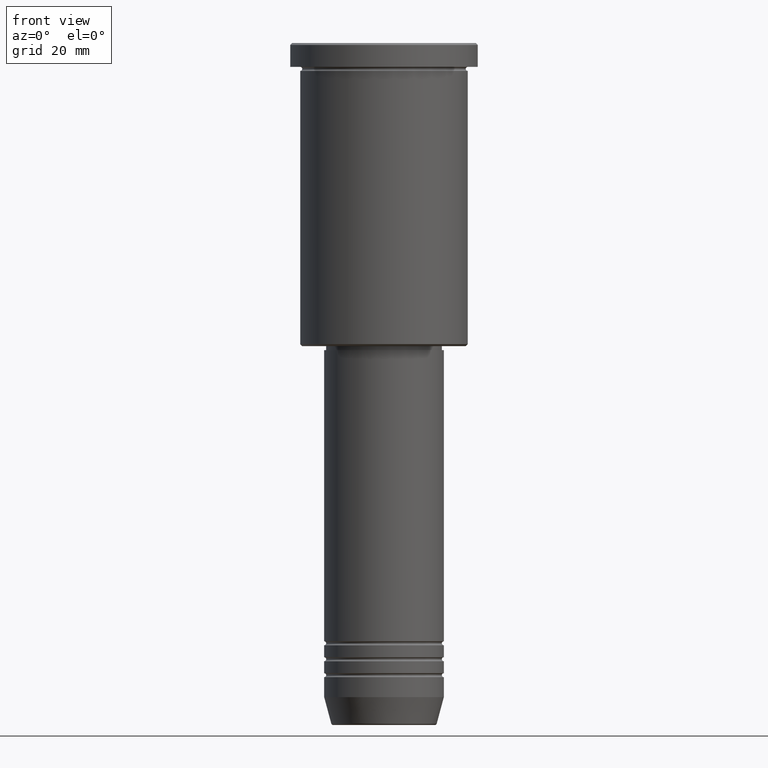
[diagram: clean part render]
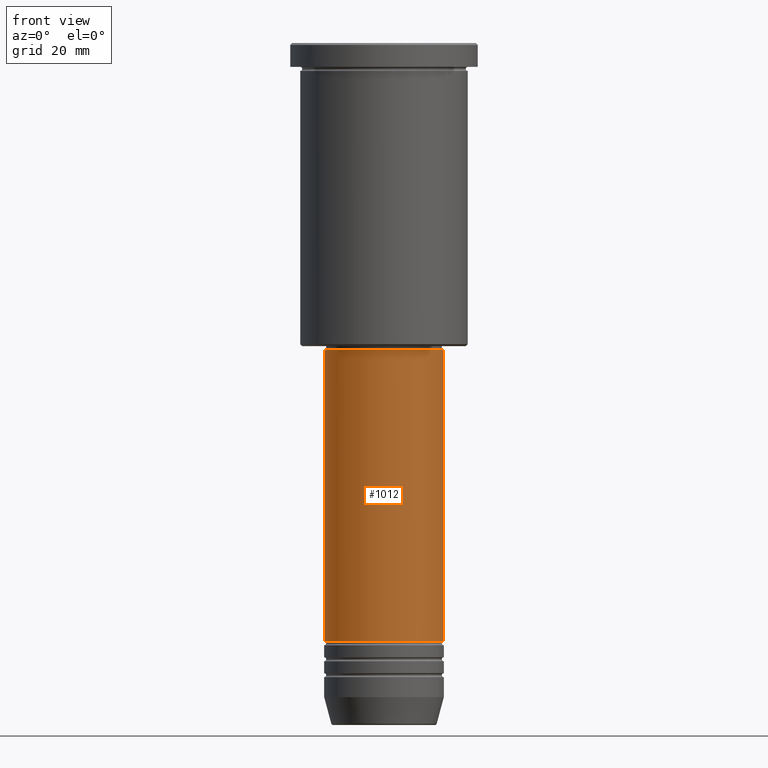
[diagram: same view with one face highlighted and labeled with its STEP entity id]
A machine part, front view. The second image highlights one B-rep face of the part: STEP entity #1012.
In plain terms, the highlighted cylindrical surface (partial cylindrical patch) has radius 15 mm, axis along (-0, -0, 1).
Its self-contained STEP definition (entity closure, byte-faithful):
#38 = ORIENTED_EDGE ( 'NONE', *, *, #686, .T. ) ;
#63 = DIRECTION ( 'NONE',  ( 1.000000000000000000, 0.000000000000000000, 0.000000000000000000 ) ) ;
#81 = LINE ( 'NONE', #1099, #968 ) ;
#166 = EDGE_LOOP ( 'NONE', ( #851, #1070, #38, #298 ) ) ;
#189 = DIRECTION ( 'NONE',  ( -0.000000000000000000, -0.000000000000000000, 1.000000000000000000 ) ) ;
#204 = CIRCLE ( 'NONE', #714, 15.00000000000000000 ) ;
#283 = AXIS2_PLACEMENT_3D ( 'NONE', #963, #1150, #63 ) ;
#298 = ORIENTED_EDGE ( 'NONE', *, *, #301, .F. ) ;
#301 = EDGE_CURVE ( 'NONE', #1091, #981, #204, .T. ) ;
#324 = DIRECTION ( 'NONE',  ( -0.000000000000000000, -0.000000000000000000, 1.000000000000000000 ) ) ;
#405 = DIRECTION ( 'NONE',  ( -0.000000000000000000, -0.000000000000000000, 1.000000000000000000 ) ) ;
#418 = FACE_OUTER_BOUND ( 'NONE', #166, .T. ) ;
#420 = CARTESIAN_POINT ( 'NONE',  ( -15.00000000000000000, 1.836970198721029589E-15, -149.9999999999998579 ) ) ;
#495 = LINE ( 'NONE', #875, #654 ) ;
#498 = CYLINDRICAL_SURFACE ( 'NONE', #892, 15.00000000000000000 ) ;
#511 = CARTESIAN_POINT ( 'NONE',  ( 0.000000000000000000, 0.000000000000000000, 0.000000000000000000 ) ) ;
#512 = CARTESIAN_POINT ( 'NONE',  ( 15.00000000000000000, 0.000000000000000000, -149.9999999999998579 ) ) ;
#514 = EDGE_CURVE ( 'NONE', #741, #1091, #81, .T. ) ;
#526 = CIRCLE ( 'NONE', #283, 15.00000000000000000 ) ;
#654 = VECTOR ( 'NONE', #324, 1000.000000000000000 ) ;
#685 = CARTESIAN_POINT ( 'NONE',  ( -15.00000000000000000, 1.836970198721029589E-15, -76.99999999999998579 ) ) ;
#686 = EDGE_CURVE ( 'NONE', #799, #981, #495, .T. ) ;
#697 = DIRECTION ( 'NONE',  ( 1.000000000000000000, 0.000000000000000000, 0.000000000000000000 ) ) ;
#714 = AXIS2_PLACEMENT_3D ( 'NONE', #1156, #964, #697 ) ;
#741 = VERTEX_POINT ( 'NONE', #420 ) ;
#756 = EDGE_CURVE ( 'NONE', #741, #799, #526, .T. ) ;
#799 = VERTEX_POINT ( 'NONE', #512 ) ;
#851 = ORIENTED_EDGE ( 'NONE', *, *, #514, .F. ) ;
#875 = CARTESIAN_POINT ( 'NONE',  ( 15.00000000000000000, 0.000000000000000000, 0.000000000000000000 ) ) ;
#892 = AXIS2_PLACEMENT_3D ( 'NONE', #511, #405, #1064 ) ;
#963 = CARTESIAN_POINT ( 'NONE',  ( 0.000000000000000000, 0.000000000000000000, -149.9999999999998579 ) ) ;
#964 = DIRECTION ( 'NONE',  ( -0.000000000000000000, -0.000000000000000000, 1.000000000000000000 ) ) ;
#968 = VECTOR ( 'NONE', #189, 1000.000000000000000 ) ;
#981 = VERTEX_POINT ( 'NONE', #1053 ) ;
#1012 = ADVANCED_FACE ( 'NONE', ( #418 ), #498, .T. ) ;
#1053 = CARTESIAN_POINT ( 'NONE',  ( 15.00000000000000000, 0.000000000000000000, -76.99999999999998579 ) ) ;
#1064 = DIRECTION ( 'NONE',  ( 1.000000000000000000, 0.000000000000000000, 0.000000000000000000 ) ) ;
#1070 = ORIENTED_EDGE ( 'NONE', *, *, #756, .T. ) ;
#1091 = VERTEX_POINT ( 'NONE', #685 ) ;
#1099 = CARTESIAN_POINT ( 'NONE',  ( -15.00000000000000000, 1.836970198721029589E-15, 0.000000000000000000 ) ) ;
#1150 = DIRECTION ( 'NONE',  ( -0.000000000000000000, -0.000000000000000000, 1.000000000000000000 ) ) ;
#1156 = CARTESIAN_POINT ( 'NONE',  ( 0.000000000000000000, 0.000000000000000000, -76.99999999999998579 ) ) ;